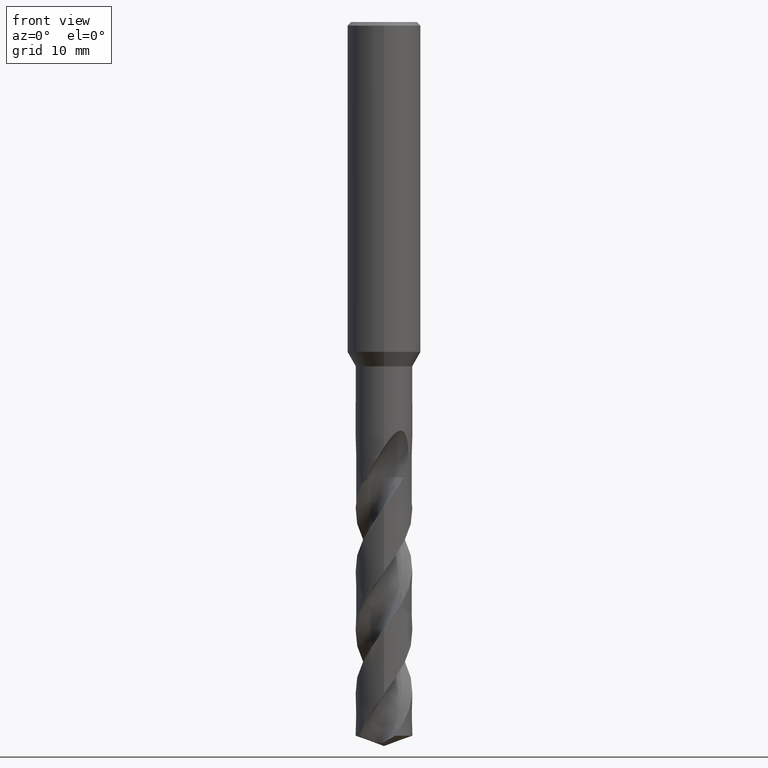
[diagram: clean part render]
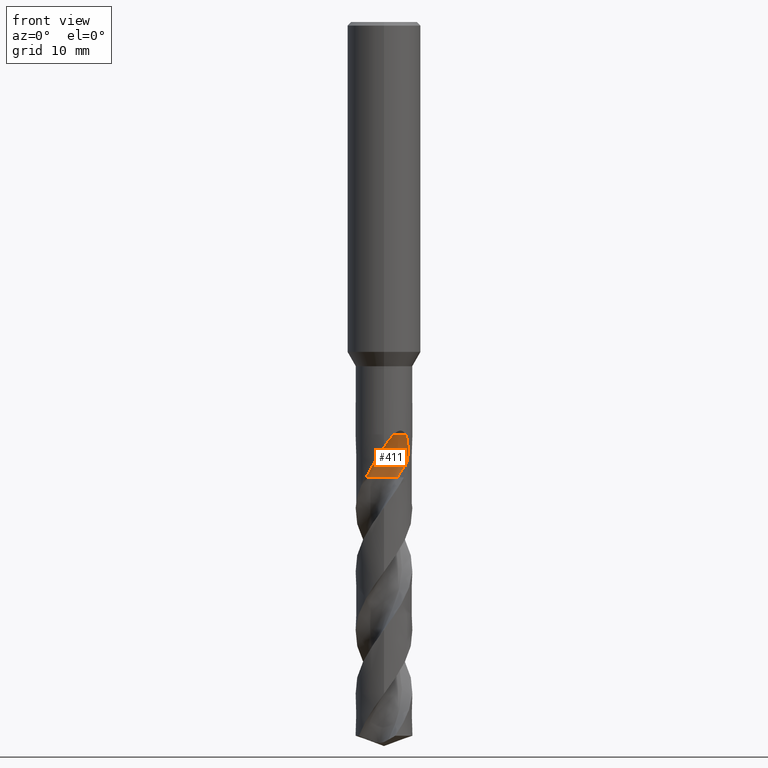
[diagram: same view with one face highlighted and labeled with its STEP entity id]
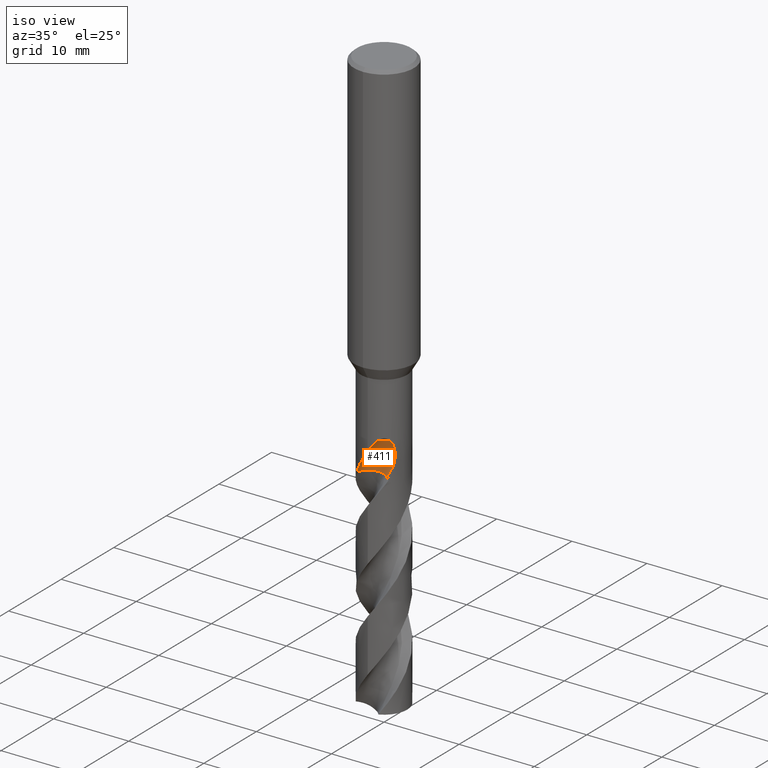
[diagram: same view with one face highlighted and labeled with its STEP entity id]
A machine part, front view. The second image highlights one B-rep face of the part: STEP entity #411.
A second angle (iso view) of the same face is appended — the face is thin or edge-on in the first view.
In plain terms, the highlighted face is a SurfaceOfRevolution surface.
Its self-contained STEP definition (entity closure, byte-faithful):
#303=VERTEX_POINT('',#797);
#349=VERTEX_POINT('',#847);
#377=EDGE_CURVE('',#497,#303,#877,.T.);
#401=EDGE_CURVE('',#575,#349,#901,.T.);
#409=EDGE_CURVE('',#479,#679,#909,.T.);
#411=ADVANCED_FACE('',(#911),#912,.F.);
#459=EDGE_CURVE('',#349,#679,#967,.T.);
#479=VERTEX_POINT('',#989);
#497=VERTEX_POINT('',#1008);
#575=VERTEX_POINT('',#1096);
#585=EDGE_CURVE('',#735,#497,#1107,.T.);
#641=EDGE_CURVE('',#735,#575,#1170,.T.);
#665=EDGE_CURVE('',#303,#479,#1196,.T.);
#679=VERTEX_POINT('',#1210);
#735=VERTEX_POINT('',#1270);
#797=CARTESIAN_POINT('',(1.05803629962367,-2.91375002336828,-45.0));
#847=CARTESIAN_POINT('',(1.46135401673851,-1.53531265326149,-49.6922));
#877=B_SPLINE_CURVE_WITH_KNOTS('',3,(#2406,#2407,#2408,#2409,#2410,#2411,#2412,#2413,#2414,#2415,#2416,#2417,#2418,#2419),.UNSPECIFIED.,.F.,.F.,(4,2,2,2,2,2,4),(0.0,1.51883673509603,2.3481481417433,3.09928458890019,3.97190647916039,5.0201128770569,5.56172164094542),.UNSPECIFIED.);
#901=CIRCLE('',#2570,2.06666667);
#909=B_SPLINE_CURVE_WITH_KNOTS('',3,(#2681,#2682,#2683,#2684,#2685,#2686,#2687,#2688),.UNSPECIFIED.,.F.,.F.,(4,2,2,4),(0.0,0.579837937852615,1.39111620451183,2.1659886536543),.UNSPECIFIED.);
#911=FACE_OUTER_BOUND('',#2690,.T.);
#912=SURFACE_OF_REVOLUTION('',#2691,#2692);
#967=CIRCLE('',#3190,13.4703057061761);
#989=CARTESIAN_POINT('',(2.34788882383199,-2.02405486114503,-45.0));
#1008=CARTESIAN_POINT('',(9.18344302335846E-013,-3.09990424979031,-46.3969779942806));
#1096=CARTESIAN_POINT('',(0.253360325551106,-0.945576384832785,-49.6922));
#1107=B_SPLINE_CURVE_WITH_KNOTS('',3,(#4494,#4495,#4496,#4497,#4498,#4499,#4500,#4501,#4502,#4503,#4504,#4505,#4506,#4507),.UNSPECIFIED.,.F.,.F.,(4,2,2,2,2,2,4),(0.0,1.51883673509603,2.3481481417433,3.09928458890019,3.97190647916039,5.0201128770569,5.56172164094542),.UNSPECIFIED.);
#1170=CIRCLE('',#4670,2.06666667);
#1196=B_SPLINE_CURVE_WITH_KNOTS('',3,(#4939,#4940,#4941,#4942,#4943,#4944,#4945,#4946,#4947,#4948,#4949,#4950),.UNSPECIFIED.,.F.,.F.,(4,2,2,2,2,4),(0.0,0.675967644251572,1.2923968761027,1.91199321734808,2.30993380114022,2.72551434260015),.UNSPECIFIED.);
#1210=CARTESIAN_POINT('',(2.52220370374451,-1.80220003645652,-47.9948405007904));
#1270=CARTESIAN_POINT('',(-1.97534083153026,-2.38903685765276,-49.6922));
#2406=CARTESIAN_POINT('',(-1.97534083153026,-2.38903685765276,-49.6922));
#2407=CARTESIAN_POINT('',(-1.77085882949533,-2.55810816369681,-49.2610151895682));
#2408=CARTESIAN_POINT('',(-1.53574807610718,-2.70840293428674,-48.8590119631873));
#2409=CARTESIAN_POINT('',(-1.12578309000925,-2.89261986635723,-48.1874439563378));
#2410=CARTESIAN_POINT('',(-0.978258607029202,-2.94561197734461,-47.9511655473296));
#2411=CARTESIAN_POINT('',(-0.692670861793276,-3.02480970276593,-47.4937965173218));
#2412=CARTESIAN_POINT('',(-0.555882564952139,-3.05278994300527,-47.274837198974));
#2413=CARTESIAN_POINT('',(-0.259795825487108,-3.09317153432544,-46.8029281186169));
#2414=CARTESIAN_POINT('',(-0.0980237495090128,-3.10265189192241,-46.5462842076142));
#2415=CARTESIAN_POINT('',(0.261229463198999,-3.09509437583751,-45.9972424524367));
#2416=CARTESIAN_POINT('',(0.474229407924875,-3.07172127498729,-45.6848345279201));
#2417=CARTESIAN_POINT('',(0.807956489624177,-2.99502919344293,-45.266286025218));
#2418=CARTESIAN_POINT('',(0.930568794763353,-2.96003622576815,-45.1247213002254));
#2419=CARTESIAN_POINT('',(1.05803629962367,-2.91375002336828,-45.0));
#2570=AXIS2_PLACEMENT_3D('',#5482,#5483,#5484);
#2681=CARTESIAN_POINT('',(2.34788882383199,-2.02405486114503,-45.0));
#2682=CARTESIAN_POINT('',(2.42447492341381,-1.93521626193711,-45.1536201983058));
#2683=CARTESIAN_POINT('',(2.48487987942529,-1.85496552159557,-45.3445884035512));
#2684=CARTESIAN_POINT('',(2.59348447745518,-1.70154390863274,-45.8706516683531));
#2685=CARTESIAN_POINT('',(2.629616718333,-1.6415063920983,-46.2426100471828));
#2686=CARTESIAN_POINT('',(2.63466467319703,-1.63339603944895,-47.0557249488336));
#2687=CARTESIAN_POINT('',(2.60864966187067,-1.68121515799223,-47.503169539442));
#2688=CARTESIAN_POINT('',(2.52220370374451,-1.80220003645652,-47.9948405007904));
#2690=EDGE_LOOP('',(#5486,#5487,#5488,#5489,#5490,#5491,#5492));
#2691=(B_SPLINE_CURVE(3,(#5494,#5495,#5496,#5497,#5498,#5499,#5500,#5501,#5502),.UNSPECIFIED.,.F.,.F.)B_SPLINE_CURVE_WITH_KNOTS((4,1,3,1,4),(-2.85637918773322,-2.55359612876133,-2.25081306978944,-1.94803001081755,-1.64524695184565),.UNSPECIFIED.)RATIONAL_B_SPLINE_CURVE((1.09167758080038,1.03055919360013,0.969440806399875,1.03055919360013,1.09167758080038,1.03055919360013,0.969440806399875,1.03055919360013,1.09167758080038))BOUNDED_CURVE()REPRESENTATION_ITEM('')GEOMETRIC_REPRESENTATION_ITEM()CURVE());
#2692=AXIS1_PLACEMENT('',#5509,#5510);
#3190=AXIS2_PLACEMENT_3D('',#5592,#5593,#5594);
#4494=CARTESIAN_POINT('',(-1.97534083153026,-2.38903685765276,-49.6922));
#4495=CARTESIAN_POINT('',(-1.77085882949533,-2.55810816369681,-49.2610151895682));
#4496=CARTESIAN_POINT('',(-1.53574807610718,-2.70840293428674,-48.8590119631873));
#4497=CARTESIAN_POINT('',(-1.12578309000925,-2.89261986635723,-48.1874439563378));
#4498=CARTESIAN_POINT('',(-0.978258607029202,-2.94561197734461,-47.9511655473296));
#4499=CARTESIAN_POINT('',(-0.692670861793276,-3.02480970276593,-47.4937965173218));
#4500=CARTESIAN_POINT('',(-0.555882564952139,-3.05278994300527,-47.274837198974));
#4501=CARTESIAN_POINT('',(-0.259795825487108,-3.09317153432544,-46.8029281186169));
#4502=CARTESIAN_POINT('',(-0.0980237495090128,-3.10265189192241,-46.5462842076142));
#4503=CARTESIAN_POINT('',(0.261229463198999,-3.09509437583751,-45.9972424524367));
#4504=CARTESIAN_POINT('',(0.474229407924875,-3.07172127498729,-45.6848345279201));
#4505=CARTESIAN_POINT('',(0.807956489624177,-2.99502919344293,-45.266286025218));
#4506=CARTESIAN_POINT('',(0.930568794763353,-2.96003622576815,-45.1247213002254));
#4507=CARTESIAN_POINT('',(1.05803629962367,-2.91375002336828,-45.0));
#4670=AXIS2_PLACEMENT_3D('',#5846,#5847,#5848);
#4939=CARTESIAN_POINT('',(0.963241558334043,-3.1499,-45.0));
#4940=CARTESIAN_POINT('',(1.03237649660124,-2.93544578347397,-45.0));
#4941=CARTESIAN_POINT('',(1.1391729958995,-2.73664849894351,-44.9999999999905));
#4942=CARTESIAN_POINT('',(1.41832405138042,-2.40978471373174,-44.9999999999905));
#4943=CARTESIAN_POINT('',(1.57929601671645,-2.2828027453494,-45.0000000000005));
#4944=CARTESIAN_POINT('',(1.94591415394497,-2.09724349160594,-45.0000000000005));
#4945=CARTESIAN_POINT('',(2.14520308041733,-2.04231352738892,-45.0000000000001));
#4946=CARTESIAN_POINT('',(2.48248793569377,-2.0119261577485,-45.0000000000001));
#4947=CARTESIAN_POINT('',(2.61526300122314,-2.01520693033636,-45.0));
#4948=CARTESIAN_POINT('',(2.8839293072255,-2.04972418050277,-45.0));
#4949=CARTESIAN_POINT('',(3.01896998728326,-2.08209017779622,-45.0));
#4950=CARTESIAN_POINT('',(3.1499,-2.12707577775214,-45.0));
#5482=CARTESIAN_POINT('',(-1.43759063624676E-005,-2.99665229409364,-49.6922));
#5483=DIRECTION('',(-0.0,0.0,-1.0));
#5484=DIRECTION('',(-0.707099825068621,-0.707113737236045,0.0));
#5486=ORIENTED_EDGE('',*,*,#409,.F.);
#5487=ORIENTED_EDGE('',*,*,#665,.F.);
#5488=ORIENTED_EDGE('',*,*,#377,.F.);
#5489=ORIENTED_EDGE('',*,*,#585,.F.);
#5490=ORIENTED_EDGE('',*,*,#641,.T.);
#5491=ORIENTED_EDGE('',*,*,#401,.T.);
#5492=ORIENTED_EDGE('',*,*,#459,.T.);
#5494=CARTESIAN_POINT('',(1.46135401673851,-1.53531265326149,-49.6922));
#5495=CARTESIAN_POINT('',(1.17512178515277,-1.24907479006535,-49.6922));
#5496=CARTESIAN_POINT('',(0.430836762852479,-0.842354494412795,-49.6922));
#5497=CARTESIAN_POINT('',(-0.412625778018299,-0.931531483956429,-49.6922));
#5498=CARTESIAN_POINT('',(-0.786930472820892,-1.08566454392209,-49.6922));
#5499=CARTESIAN_POINT('',(-1.16123516762349,-1.23979760388776,-49.6922));
#5500=CARTESIAN_POINT('',(-1.82291832838352,-1.77041704198144,-49.6922));
#5501=CARTESIAN_POINT('',(-2.06498767282682,-2.58330327374887,-49.6922));
#5502=CARTESIAN_POINT('',(-2.06666333903987,-2.98809729157569,-49.6922));
#5509=CARTESIAN_POINT('',(1.05086131540747,-14.98333335,-50.3489883221297));
#5510=DIRECTION('',(-0.847998304005088,0.0,0.52999894000318));
#5592=CARTESIAN_POINT('',(1.05086131540747,-14.98333335,-50.3489883221297));
#5593=DIRECTION('',(0.847998304005088,0.0,-0.52999894000318));
#5594=DIRECTION('',(0.0535598119891264,0.994880693189537,0.0856956991826022));
#5846=CARTESIAN_POINT('',(-1.43759063624676E-005,-2.99665229409364,-49.6922));
#5847=DIRECTION('',(-0.0,0.0,-1.0));
#5848=DIRECTION('',(-0.707099825068621,-0.707113737236045,0.0));